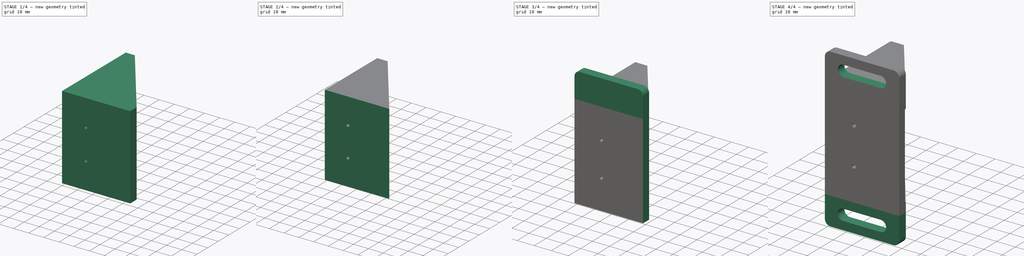
[diagram: build sequence overview — one tinted view per stage of 4, left to right]
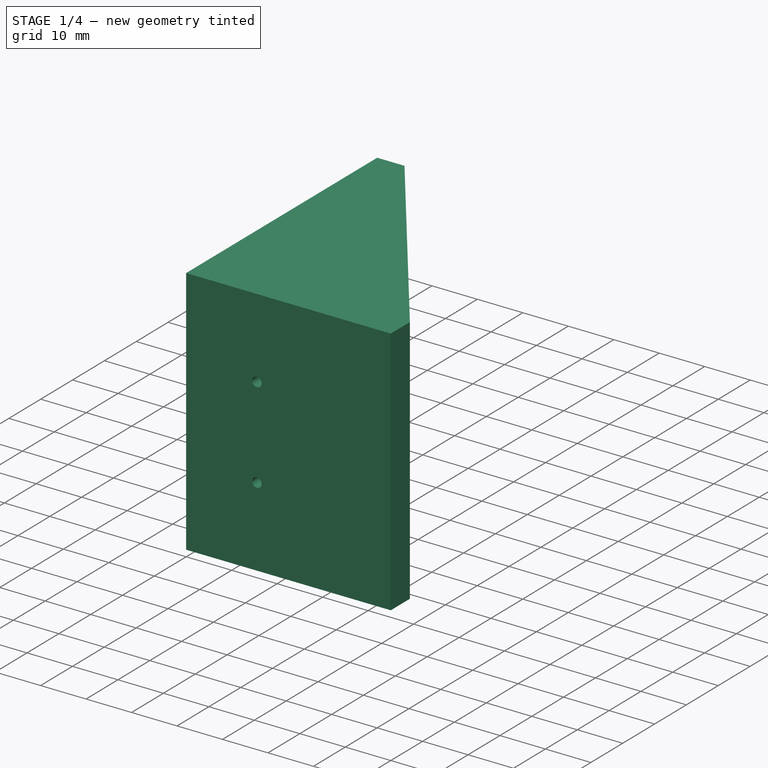
[diagram: stage 1 of 4 — iso view after this stage's code; geometry added in this stage tinted green]
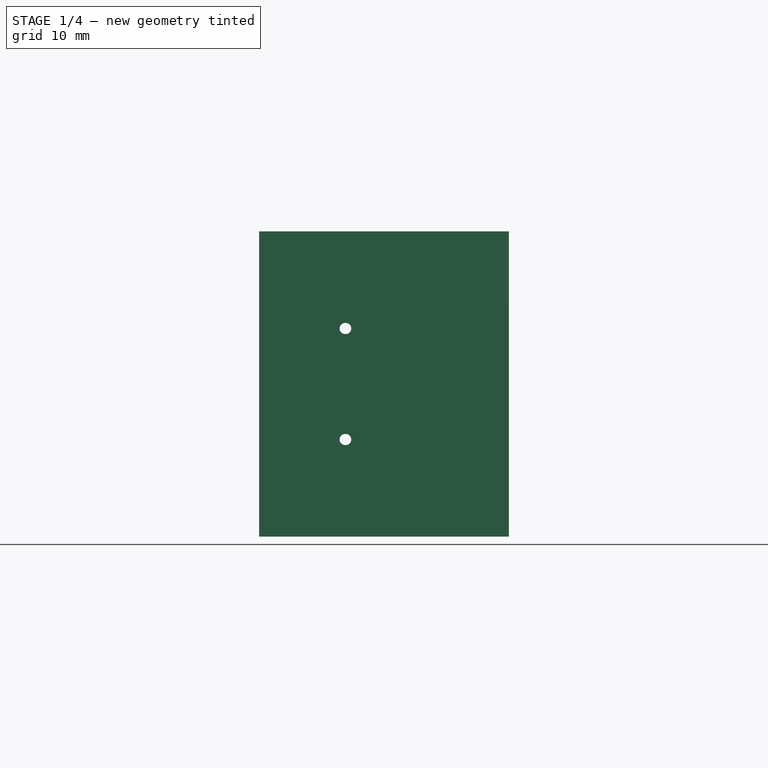
[diagram: stage 1 of 4 — front view after this stage's code; geometry added in this stage tinted green]
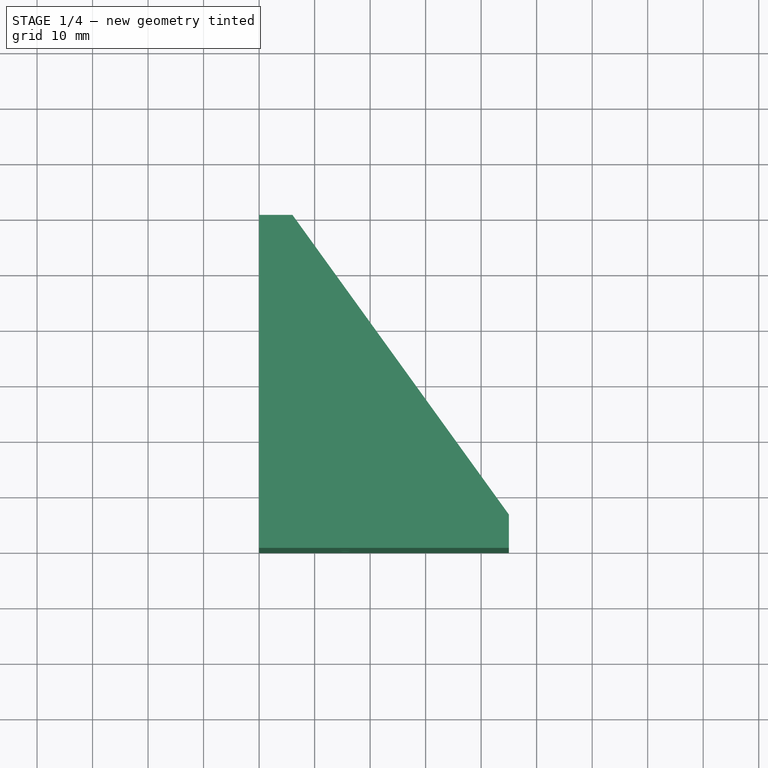
[diagram: stage 1 of 4 — top view after this stage's code; geometry added in this stage tinted green]
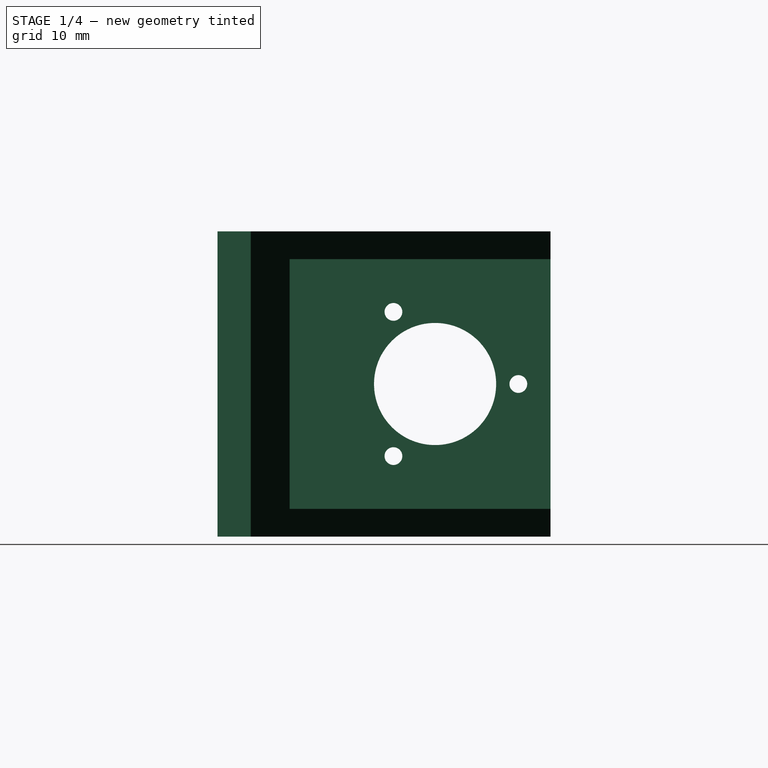
[diagram: stage 1 of 4 — right view after this stage's code; geometry added in this stage tinted green]
FCSTD DOCUMENT  (FreeCAD 0.21R33668 +26 (Git))
Label: encoder_holder3
License: All rights reserved
LicenseURL: https://en.wikipedia.org/wiki/All_rights_reserved
objects: Sketcher::SketchObject×10, PartDesign::Pocket×7, PartDesign::Fillet×4, PartDesign::Pad×3, PartDesign::Body×1
note: 39 computed .brp shape members not serialized (recipe doc carries the construction recipe); baked Part::Feature solids carry a one-line shape summary decoded from their .brp

FEATURE [Sketcher::SketchObject] Sketch
  FullyConstrained = true
  MapMode = 5
  Support = -> [XY_Plane]
  sketch-geometry (5):
    g0: LineSegment StartX=0 StartY=0 StartZ=0 EndX=0 EndY=60 EndZ=0
    g1: LineSegment StartX=0 StartY=60 StartZ=0 EndX=6 EndY=60 EndZ=0
    g2: LineSegment StartX=6 StartY=60 StartZ=0 EndX=45 EndY=6 EndZ=0
    g3: LineSegment StartX=45 StartY=6 StartZ=0 EndX=45 EndY=0 EndZ=0
    g4: LineSegment StartX=45 StartY=0 StartZ=0 EndX=0 EndY=0 EndZ=0
  constraints (14):
    c: Coincident(g-1,g0)
    c: PointOnObject(g0,g-2)
    c: Coincident(g0,g1)
    c: Horizontal(g1)
    c: Coincident(g1,g2)
    c: Coincident(g2,g3)
    c: PointOnObject(g3,g-1)
    c: Vertical(g3)
    c: Coincident(g3,g4)
    c: Coincident(g4,g0)
    c: DistanceX(g1,g1) = 6
    c: DistanceY(g3,g3) = 6
    c: DistanceY(g0,g0) = 60
    c: DistanceX(g4,g4) = 45
FEATURE [PartDesign::Pad] Pad
  Direction = (0,0,1)
  Length = 55
  Length2 = 10
  Profile = -> Sketch
  ReferenceAxis = -> Sketch [N_Axis]
  Type = 0
FEATURE [Sketcher::SketchObject] Sketch001
  ExternalGeometry = -> [Pad]
  FullyConstrained = true
  MapMode = 5
  Placement = pos=(0,60,0) rot=(0,0.707107,0.707107;3.14159rad)
  Support = -> [Pad]
  sketch-geometry (4):
    g0: LineSegment StartX=-6 StartY=50 StartZ=0 EndX=-45 EndY=50 EndZ=0
    g1: LineSegment StartX=-45 StartY=50 StartZ=0 EndX=-45 EndY=5 EndZ=0
    g2: LineSegment StartX=-45 StartY=5 StartZ=0 EndX=-6 EndY=5 EndZ=0
    g3: LineSegment StartX=-6 StartY=5 StartZ=0 EndX=-6 EndY=50 EndZ=0
  constraints (12):
    c: Coincident(g0,g1)
    c: Coincident(g1,g2)
    c: Coincident(g2,g3)
    c: Coincident(g3,g0)
    c: Horizontal(g0)
    c: Horizontal(g2)
    c: Vertical(g1)
    c: Vertical(g3)
    c: PointOnObject(g0,g-3)
    c: DistanceY(g0,g-3) = 5
    c: DistanceY(g-3,g2) = 5
    c: DistanceX(g-4,g0) = 0
FEATURE [PartDesign::Pocket] Pocket
  BaseFeature = -> Pad
  Direction = (0,-1,2e-16)
  Length = 47
  Length2 = 5
  Profile = -> Sketch001
  ReferenceAxis = -> Sketch001 [N_Axis]
  Type = 0
FEATURE [Sketcher::SketchObject] Sketch002
  ExternalGeometry = -> [Pocket]
  FullyConstrained = true
  MapMode = 5
  Placement = pos=(0,0,0) rot=(0.57735,-0.57735,-0.57735;2.0944rad)
  Support = -> [Pocket]
  sketch-geometry (4):
    g0: Circle CenterX=-39.2 CenterY=27.5 CenterZ=0 NormalX=0 NormalY=0 NormalZ=1 AngleXU=0 Radius=11
    g1: Circle CenterX=-54.2 CenterY=27.5 CenterZ=0 NormalX=0 NormalY=0 NormalZ=1 AngleXU=0 Radius=1.6
    g2: Circle CenterX=-31.7 CenterY=40.4904 CenterZ=0 NormalX=0 NormalY=0 NormalZ=1 AngleXU=0 Radius=1.6
    g3: Circle CenterX=-31.7 CenterY=14.5096 CenterZ=0 NormalX=0 NormalY=0 NormalZ=1 AngleXU=0 Radius=1.6
  constraints (12):
    c: Diameter(g0) = 22
    c: DistanceX(g0,g-1) = 39.2
    c: DistanceY(g-1,g0) = 27.5
    c: Diameter(g1) = 3.2
    c: Horizontal(g1,g0)
    c: DistanceX(g1,g0) = 15
    c: Diameter(g2) = 3.2
    c: Diameter(g3) = 3.2
    c: DistanceX(g0,g2) = 7.5
    c: DistanceY(g0,g2) = 12.9904
    c: DistanceX(g0,g3) = 7.5
    c: DistanceY(g3,g0) = 12.9904
FEATURE [PartDesign::Pocket] Pocket001
  BaseFeature = -> Pocket
  Direction = (1,0,0)
  Length = 5
  Length2 = 5
  Profile = -> Sketch002
  ReferenceAxis = -> Sketch002 [N_Axis]
  Type = 1
FEATURE [Sketcher::SketchObject] Sketch003
  ExternalGeometry = -> [Pocket001]
  FullyConstrained = true
  MapMode = 5
  Placement = pos=(0,13,-4.1e-15) rot=(0,0.707107,0.707107;3.14159rad)
  Support = -> [Pocket001]
  sketch-geometry (8):
    g0: ArcOfCircle CenterX=-15.6 CenterY=37.5 CenterZ=0 NormalX=0 NormalY=0 NormalZ=1 AngleXU=0 Radius=1 StartAngle=1.5708 EndAngle=4.71239
    g1: ArcOfCircle CenterX=-15.5 CenterY=37.5 CenterZ=0 NormalX=0 NormalY=0 NormalZ=1 AngleXU=0 Radius=1 StartAngle=4.71239 EndAngle=7.85398
    g2: LineSegment StartX=-15.6 StartY=36.5 StartZ=0 EndX=-15.5 EndY=36.5 EndZ=0
    g3: LineSegment StartX=-15.5 StartY=38.5 StartZ=0 EndX=-15.6 EndY=38.5 EndZ=0
    g4: ArcOfCircle CenterX=-15.6 CenterY=17.5 CenterZ=0 NormalX=0 NormalY=0 NormalZ=1 AngleXU=0 Radius=1 StartAngle=1.5708 EndAngle=4.71239
    g5: ArcOfCircle CenterX=-15.5 CenterY=17.5 CenterZ=0 NormalX=0 NormalY=0 NormalZ=1 AngleXU=0 Radius=1 StartAngle=4.71239 EndAngle=7.85398
    g6: LineSegment StartX=-15.6 StartY=16.5 StartZ=0 EndX=-15.5 EndY=16.5 EndZ=0
    g7: LineSegment StartX=-15.5 StartY=18.5 StartZ=0 EndX=-15.6 EndY=18.5 EndZ=0
  constraints (20):
    c: Tangent(g0,g2) = -1.5708
    c: Tangent(g2,g1) = -1.5708
    c: Tangent(g1,g3) = -1.5708
    c: Tangent(g3,g0) = -1.5708
    c: Equal(g0,g1)
    c: Horizontal(g2)
    c: Tangent(g4,g6) = -1.5708
    c: Tangent(g6,g5) = -1.5708
    c: Tangent(g5,g7) = -1.5708
    c: Tangent(g7,g4) = -1.5708
    c: Equal(g4,g5)
    c: Horizontal(g6)
    c: Radius(g1) = 1
    c: Radius(g5) = 1
    c: Equal(g2,g7)
    c: Vertical(g0,g4)
    c: DistanceY(g4,g0) = 20
    c: DistanceX(g3,g3) = 0.1
    c: DistanceY(g-1,g4) = 17.5
    c: DistanceX(g1,g-3) = 15.5
FEATURE [PartDesign::Pocket] Pocket002
  BaseFeature = -> Pocket001
  Direction = (0,-1,2e-16)
  Length = 5
  Length2 = 5
  Profile = -> Sketch003
  ReferenceAxis = -> Sketch003 [N_Axis]
  Type = 1
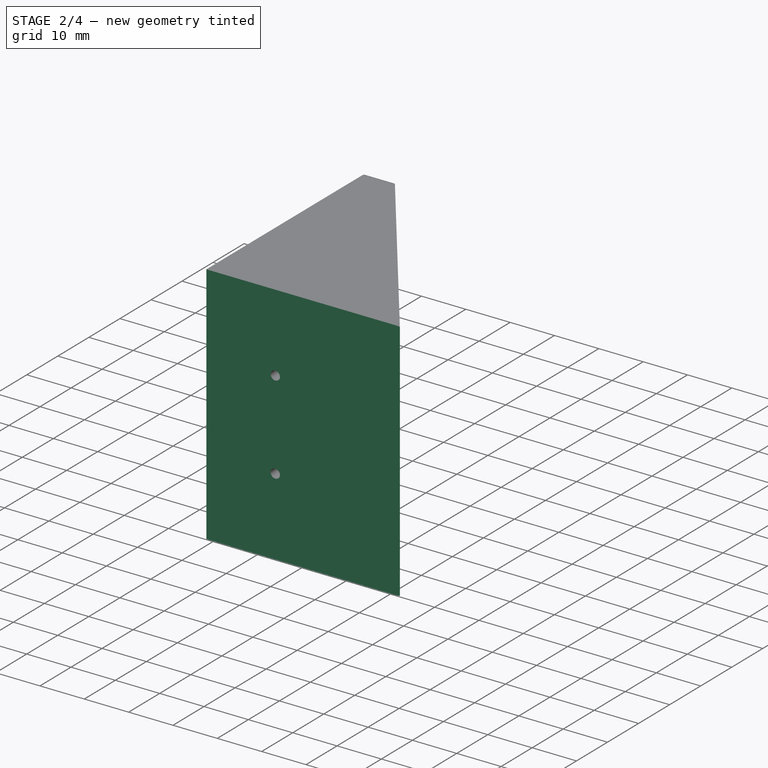
[diagram: stage 2 of 4 — iso view after this stage's code; geometry added in this stage tinted green]
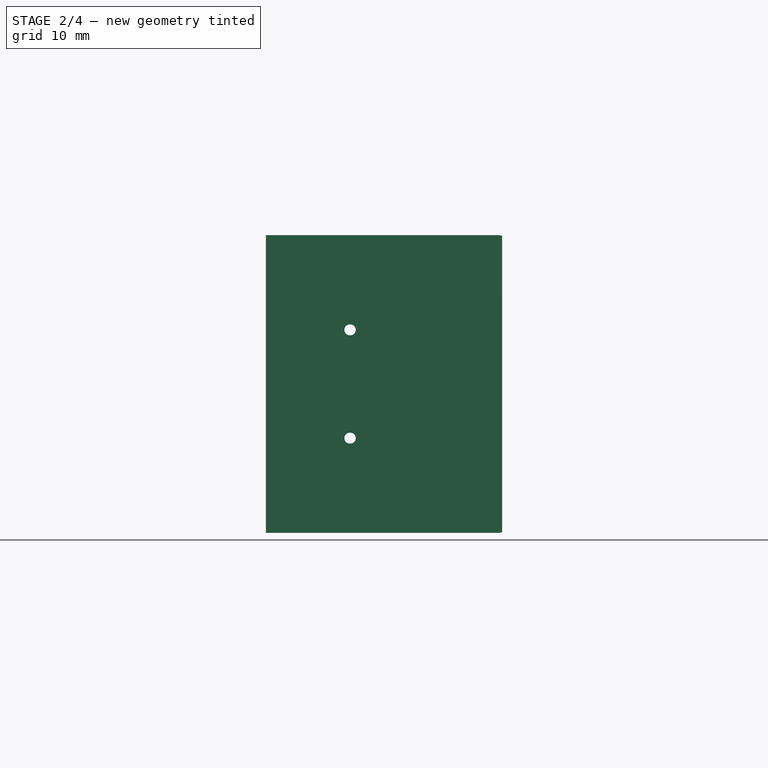
[diagram: stage 2 of 4 — front view after this stage's code; geometry added in this stage tinted green]
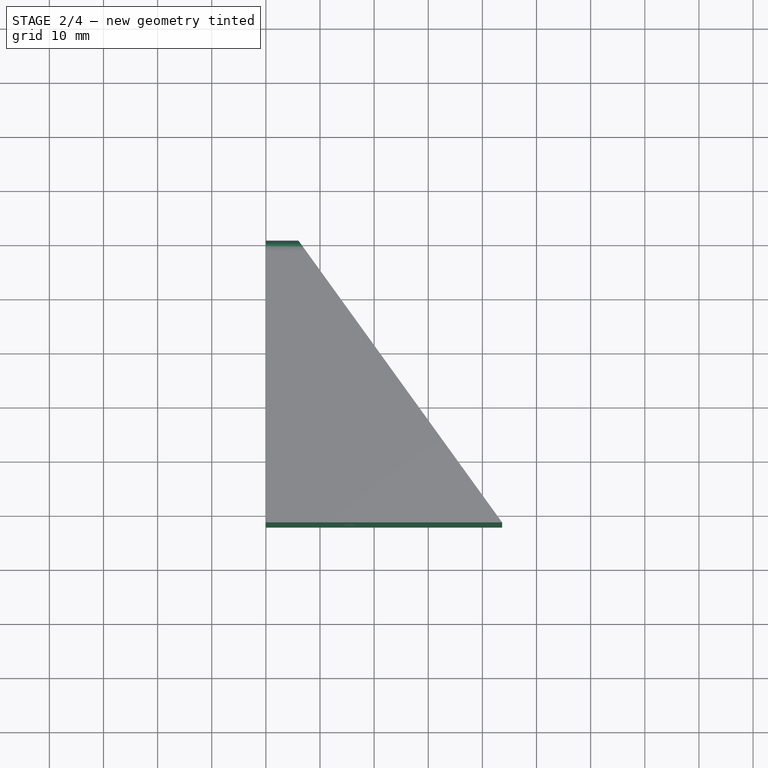
[diagram: stage 2 of 4 — top view after this stage's code; geometry added in this stage tinted green]
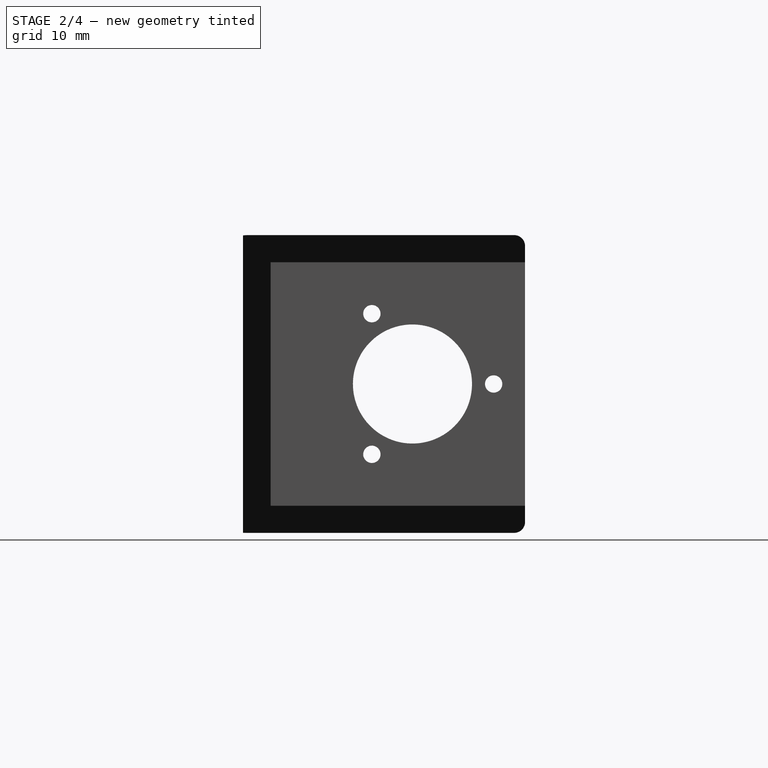
[diagram: stage 2 of 4 — right view after this stage's code; geometry added in this stage tinted green]
FEATURE [PartDesign::Fillet] Fillet
  Base = -> Pocket002 [Edge23,Edge20,Edge22,Edge25]
  BaseFeature = -> Pocket002
  Radius = 2
  SupportTransform = false
  UseAllEdges = false
FEATURE [Sketcher::SketchObject] Sketch004
  FullyConstrained = false
  MapMode = 5
  Placement = pos=(45,0,0) rot=(0.57735,0.57735,0.57735;2.0944rad)
  Support = -> [Fillet]
  sketch-geometry (4):
    g0: LineSegment StartX=0 StartY=0 StartZ=0 EndX=0.885 EndY=0 EndZ=0
    g1: LineSegment StartX=0.885 StartY=0 StartZ=0 EndX=0.885 EndY=58.8523 EndZ=0
    g2: LineSegment StartX=0.885 StartY=58.8523 StartZ=0 EndX=0 EndY=58.8523 EndZ=0
    g3: LineSegment StartX=0 StartY=58.8523 StartZ=0 EndX=0 EndY=0 EndZ=0
  constraints (10):
    c: Coincident(g0,g1)
    c: Coincident(g1,g2)
    c: Coincident(g2,g3)
    c: Coincident(g3,g0)
    c: Horizontal(g0)
    c: Horizontal(g2)
    c: Vertical(g1)
    c: Vertical(g3)
    c: Coincident(g0,g-1)
    c: DistanceX(g2,g2) = 0.885
FEATURE [PartDesign::Pocket] Pocket003
  BaseFeature = -> Fillet
  Direction = (-1,0,0)
  Length = 5
  Length2 = 5
  Profile = -> Sketch004
  ReferenceAxis = -> Sketch004 [N_Axis]
  Type = 1
FEATURE [Sketcher::SketchObject] Sketch005
  ExternalGeometry = -> [Pocket003]
  FullyConstrained = false
  MapMode = 5
  Placement = pos=(45,0,0) rot=(0.57735,0.57735,0.57735;2.0944rad)
  Support = -> [Pocket003]
  sketch-geometry (4):
    g0: LineSegment StartX=0 StartY=0 StartZ=0 EndX=7.885 EndY=0 EndZ=0
    g1: LineSegment StartX=7.885 StartY=0 StartZ=0 EndX=7.885 EndY=57.7922 EndZ=0
    g2: LineSegment StartX=7.885 StartY=57.7922 StartZ=0 EndX=0 EndY=57.7922 EndZ=0
    g3: LineSegment StartX=0 StartY=57.7922 StartZ=0 EndX=0 EndY=0 EndZ=0
  constraints (10):
    c: Coincident(g0,g1)
    c: Coincident(g1,g2)
    c: Coincident(g2,g3)
    c: Coincident(g3,g0)
    c: Horizontal(g0)
    c: Horizontal(g2)
    c: Vertical(g1)
    c: Vertical(g3)
    c: Coincident(g0,g-1)
    c: DistanceX(g-3,g0) = 7
FEATURE [PartDesign::Pocket] Pocket004
  BaseFeature = -> Pocket003
  Direction = (-1,0,0)
  Length = 5
  Length2 = 5
  Profile = -> Sketch005
  ReferenceAxis = -> Sketch005 [N_Axis]
  Type = 1
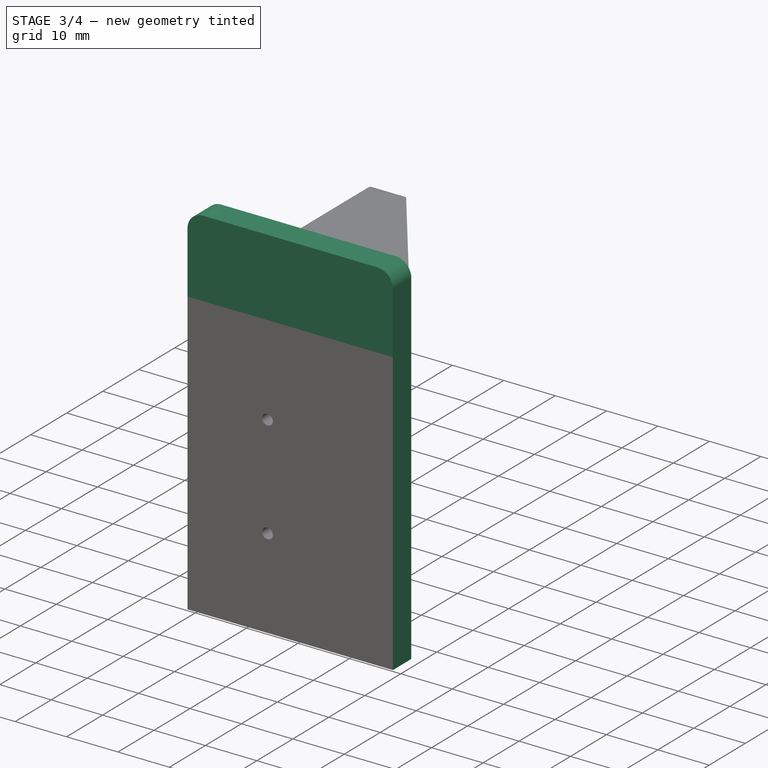
[diagram: stage 3 of 4 — iso view after this stage's code; geometry added in this stage tinted green]
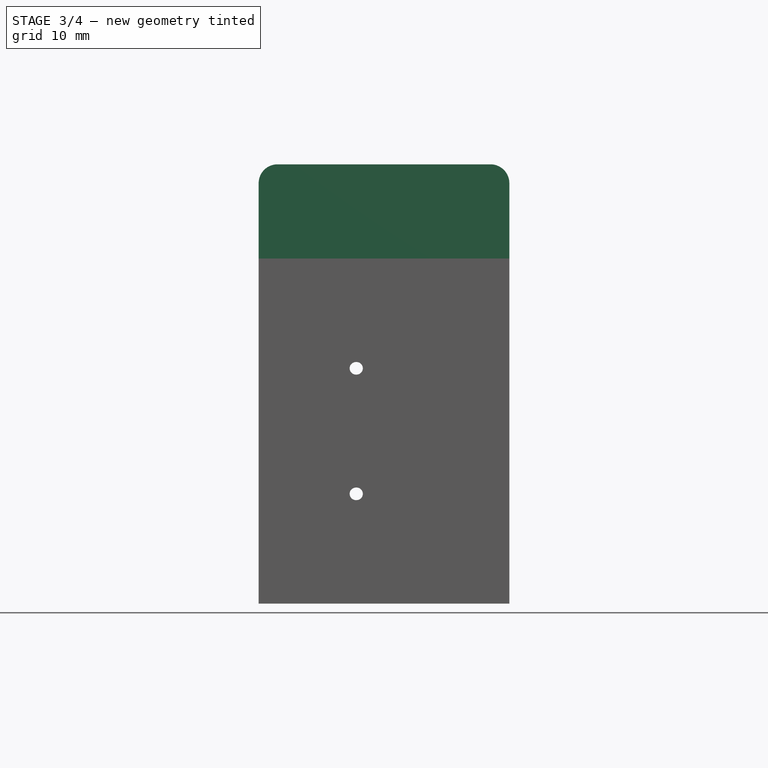
[diagram: stage 3 of 4 — front view after this stage's code; geometry added in this stage tinted green]
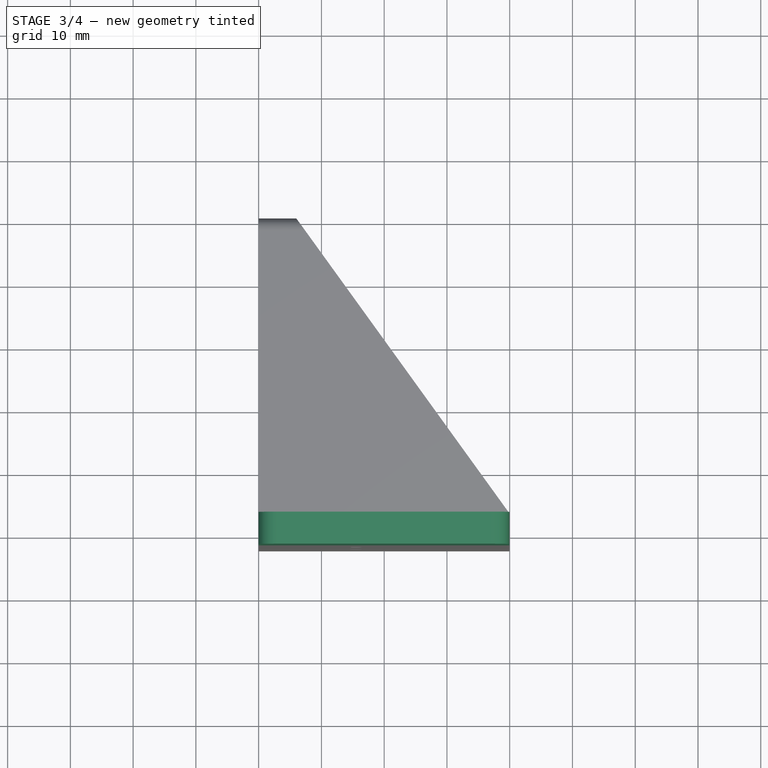
[diagram: stage 3 of 4 — top view after this stage's code; geometry added in this stage tinted green]
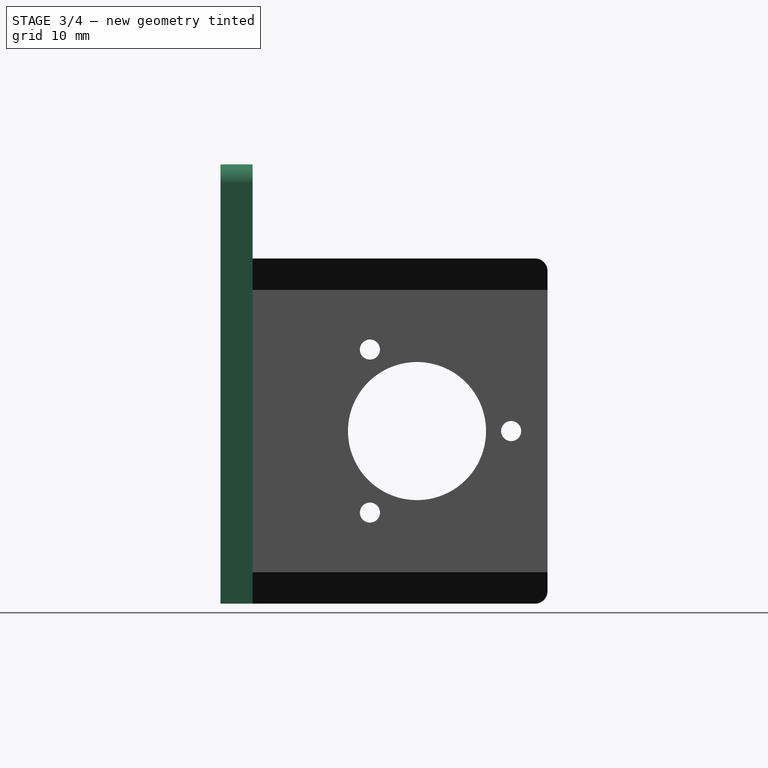
[diagram: stage 3 of 4 — right view after this stage's code; geometry added in this stage tinted green]
FEATURE [Sketcher::SketchObject] Sketch006
  ExternalGeometry = -> [Pocket004]
  FullyConstrained = false
  MapMode = 5
  Placement = pos=(0,60,0) rot=(0,0.707107,0.707107;3.14159rad)
  Support = -> [Pocket004]
  sketch-geometry (4):
    g0: LineSegment StartX=-49.5714 StartY=60.6694 StartZ=0 EndX=-39.9444 EndY=60.6694 EndZ=0
    g1: LineSegment StartX=-39.9444 StartY=60.6694 StartZ=0 EndX=-39.9444 EndY=-7.04187 EndZ=0
    g2: LineSegment StartX=-39.9444 StartY=-7.04187 StartZ=0 EndX=-49.5714 EndY=-7.04187 EndZ=0
    g3: LineSegment StartX=-49.5714 StartY=-7.04187 StartZ=0 EndX=-49.5714 EndY=60.6694 EndZ=0
  constraints (9):
    c: Coincident(g0,g1)
    c: Coincident(g1,g2)
    c: Coincident(g2,g3)
    c: Coincident(g3,g0)
    c: Horizontal(g0)
    c: Horizontal(g2)
    c: Vertical(g1)
    c: Vertical(g3)
    c: DistanceX(g0,g-3) = 0
FEATURE [PartDesign::Pocket] Pocket005
  BaseFeature = -> Pocket004
  Direction = (0,-1,2e-16)
  Length = 5
  Length2 = 5
  Profile = -> Sketch006
  ReferenceAxis = -> Sketch006 [N_Axis]
  Type = 1
FEATURE [Sketcher::SketchObject] Sketch007
  ExternalGeometry = -> [Pocket005]
  FullyConstrained = true
  MapMode = 5
  Placement = pos=(0,0,55) rot=(0,0,1;0rad)
  Support = -> [Pocket005]
  sketch-geometry (4):
    g0: LineSegment StartX=39.9444 StartY=13 StartZ=0 EndX=0 EndY=13 EndZ=0
    g1: LineSegment StartX=0 StartY=13 StartZ=0 EndX=0 EndY=7.885 EndZ=0
    g2: LineSegment StartX=0 StartY=7.885 StartZ=0 EndX=39.9444 EndY=7.885 EndZ=0
    g3: LineSegment StartX=39.9444 StartY=7.885 StartZ=0 EndX=39.9444 EndY=13 EndZ=0
  constraints (11):
    c: Coincident(g0,g1)
    c: Coincident(g1,g2)
    c: Coincident(g2,g3)
    c: Coincident(g3,g0)
    c: Horizontal(g0)
    c: Horizontal(g2)
    c: Vertical(g1)
    c: Vertical(g3)
    c: Coincident(g0,g-4)
    c: DistanceY(g1,g-3) = 0
    c: DistanceX(g1,g-1) = 0
FEATURE [PartDesign::Pad] Pad001
  BaseFeature = -> Pocket005
  Direction = (0,0,1)
  Length = 15
  Length2 = 10
  Profile = -> Sketch007
  ReferenceAxis = -> Sketch007 [N_Axis]
  Type = 0
FEATURE [PartDesign::Fillet] Fillet001
  Base = -> Pad001 [Edge60,Edge26]
  BaseFeature = -> Pad001
  Radius = 3
  SupportTransform = false
  UseAllEdges = false
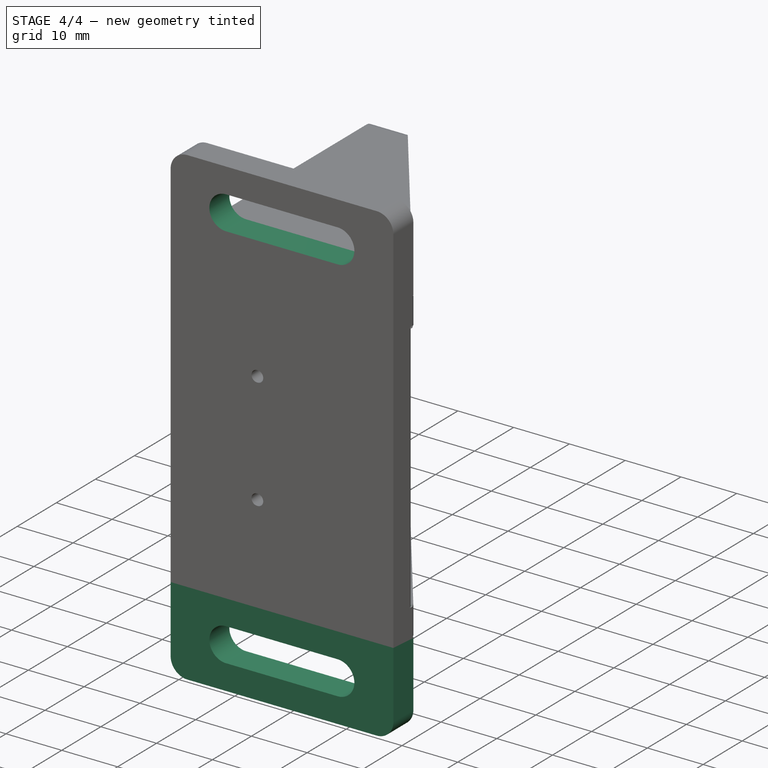
[diagram: stage 4 of 4 — iso view after this stage's code; geometry added in this stage tinted green]
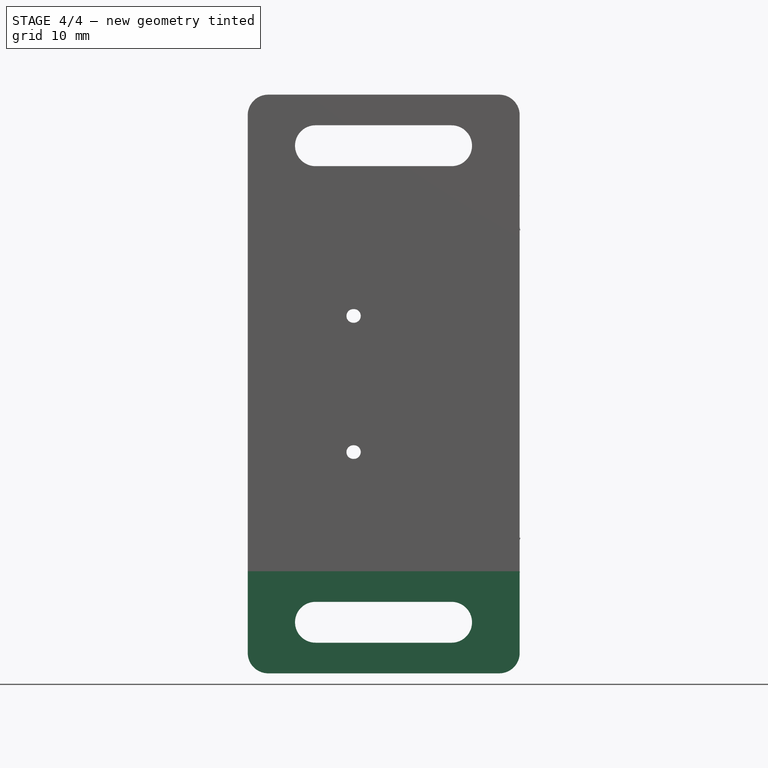
[diagram: stage 4 of 4 — front view after this stage's code; geometry added in this stage tinted green]
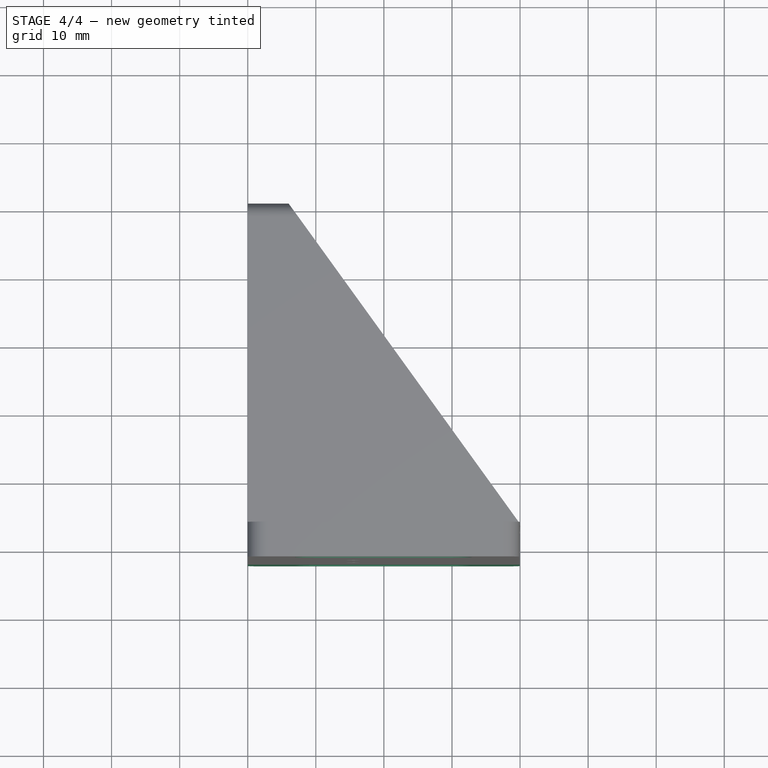
[diagram: stage 4 of 4 — top view after this stage's code; geometry added in this stage tinted green]
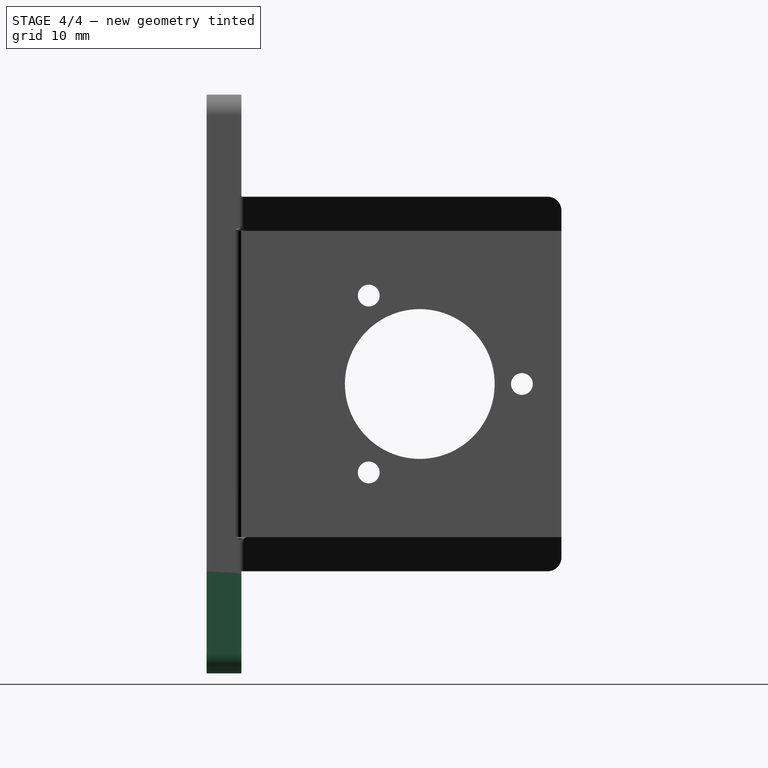
[diagram: stage 4 of 4 — right view after this stage's code; geometry added in this stage tinted green]
FEATURE [Sketcher::SketchObject] Sketch008
  ExternalGeometry = -> [Fillet001]
  FullyConstrained = true
  MapMode = 5
  Placement = pos=(0,0,0) rot=(1,0,0;3.14159rad)
  Support = -> [Fillet001]
  sketch-geometry (4):
    g0: LineSegment StartX=39.9444 StartY=-13 StartZ=0 EndX=0 EndY=-13 EndZ=0
    g1: LineSegment StartX=0 StartY=-13 StartZ=0 EndX=0 EndY=-7.885 EndZ=0
    g2: LineSegment StartX=0 StartY=-7.885 StartZ=0 EndX=39.9444 EndY=-7.885 EndZ=0
    g3: LineSegment StartX=39.9444 StartY=-7.885 StartZ=0 EndX=39.9444 EndY=-13 EndZ=0
  constraints (11):
    c: Coincident(g0,g1)
    c: Coincident(g1,g2)
    c: Coincident(g2,g3)
    c: Coincident(g3,g0)
    c: Horizontal(g0)
    c: Horizontal(g2)
    c: Vertical(g1)
    c: Vertical(g3)
    c: Coincident(g0,g-3)
    c: DistanceX(g1,g-4) = 0
    c: DistanceY(g-4,g2) = 0
FEATURE [PartDesign::Pad] Pad002
  BaseFeature = -> Fillet001
  Direction = (0,0,-1)
  Length = 15
  Length2 = 10
  Profile = -> Sketch008
  ReferenceAxis = -> Sketch008 [N_Axis]
  Type = 0
FEATURE [PartDesign::Fillet] Fillet002
  Base = -> Pad002 [Edge72,Edge34]
  BaseFeature = -> Pad002
  Radius = 3
  SupportTransform = false
  UseAllEdges = false
FEATURE [Sketcher::SketchObject] Sketch009
  ExternalGeometry = -> [Fillet002]
  FullyConstrained = true
  MapMode = 5
  Placement = pos=(0,13,0) rot=(0,0.707107,0.707107;3.14159rad)
  Support = -> [Fillet002]
  sketch-geometry (8):
    g0: ArcOfCircle CenterX=-29.9444 CenterY=62.5 CenterZ=0 NormalX=0 NormalY=0 NormalZ=1 AngleXU=0 Radius=3 StartAngle=1.5708 EndAngle=4.71239
    g1: ArcOfCircle CenterX=-9.94444 CenterY=62.5 CenterZ=0 NormalX=0 NormalY=0 NormalZ=1 AngleXU=0 Radius=3 StartAngle=4.71239 EndAngle=7.85398
    g2: LineSegment StartX=-29.9444 StartY=59.5 StartZ=0 EndX=-9.94444 EndY=59.5 EndZ=0
    g3: LineSegment StartX=-9.94444 StartY=65.5 StartZ=0 EndX=-29.9444 EndY=65.5 EndZ=0
    g4: ArcOfCircle CenterX=-29.9444 CenterY=-7.5 CenterZ=0 NormalX=0 NormalY=0 NormalZ=1 AngleXU=0 Radius=3 StartAngle=1.5708 EndAngle=4.71239
    g5: ArcOfCircle CenterX=-9.94444 CenterY=-7.5 CenterZ=0 NormalX=0 NormalY=0 NormalZ=1 AngleXU=0 Radius=3 StartAngle=4.71239 EndAngle=7.85398
    g6: LineSegment StartX=-29.9444 StartY=-10.5 StartZ=0 EndX=-9.94444 EndY=-10.5 EndZ=0
    g7: LineSegment StartX=-9.94444 StartY=-4.5 StartZ=0 EndX=-29.9444 EndY=-4.5 EndZ=0
  constraints (20):
    c: Tangent(g0,g2) = -1.5708
    c: Tangent(g2,g1) = -1.5708
    c: Tangent(g1,g3) = -1.5708
    c: Tangent(g3,g0) = -1.5708
    c: Equal(g0,g1)
    c: Horizontal(g2)
    c: Tangent(g4,g6) = -1.5708
    c: Tangent(g6,g5) = -1.5708
    c: Tangent(g5,g7) = -1.5708
    c: Tangent(g7,g4) = -1.5708
    c: Equal(g4,g5)
    c: Horizontal(g6)
    c: Radius(g1) = 3
    c: Equal(g5,g1)
    c: Vertical(g1,g5)
    c: DistanceX(g3,g3) = 20
    c: DistanceX(g-3,g0) = 7
    c: DistanceY(g-4,g0) = 7.5
    c: DistanceY(g-10,g4) = 7.5
    c: DistanceX(g-10,g4) = 7
FEATURE [PartDesign::Pocket] Pocket006
  BaseFeature = -> Fillet002
  Direction = (0,-1,2e-16)
  Length = 5
  Length2 = 5
  Profile = -> Sketch009
  ReferenceAxis = -> Sketch009 [N_Axis]
  Type = 1
FEATURE [PartDesign::Fillet] Fillet003
  Base = -> Pocket006 [Edge75,Edge77,Edge78]
  BaseFeature = -> Pocket006
  Radius = 1
  SupportTransform = false
  UseAllEdges = false
FEATURE [PartDesign::Body] Body
  Group = -> [Sketch,Pad,Sketch001,Pocket,Sketch002,Pocket001,Sketch003,Pocket002,Fillet,Sketch004,Pocket003,Sketch005,Pocket004,Sketch006,Pocket005,Sketch007,Pad001,Fillet001,Sketch008,Pad002,Fillet002,Sketch009,Pocket006,Fillet003]
  Origin = -> Origin
  Tip = -> Fillet003
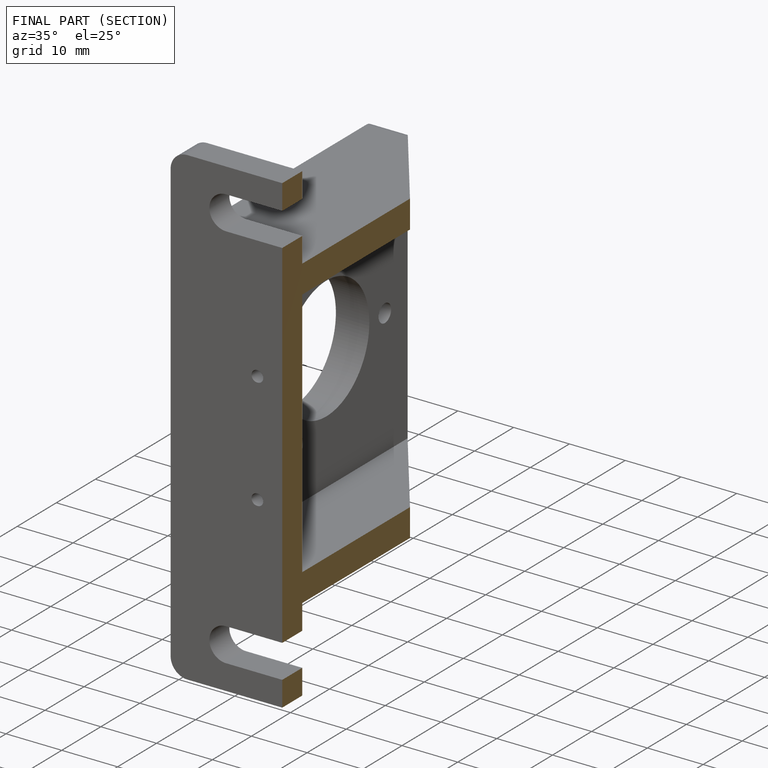
[diagram: finished part — half-section view (interior)]
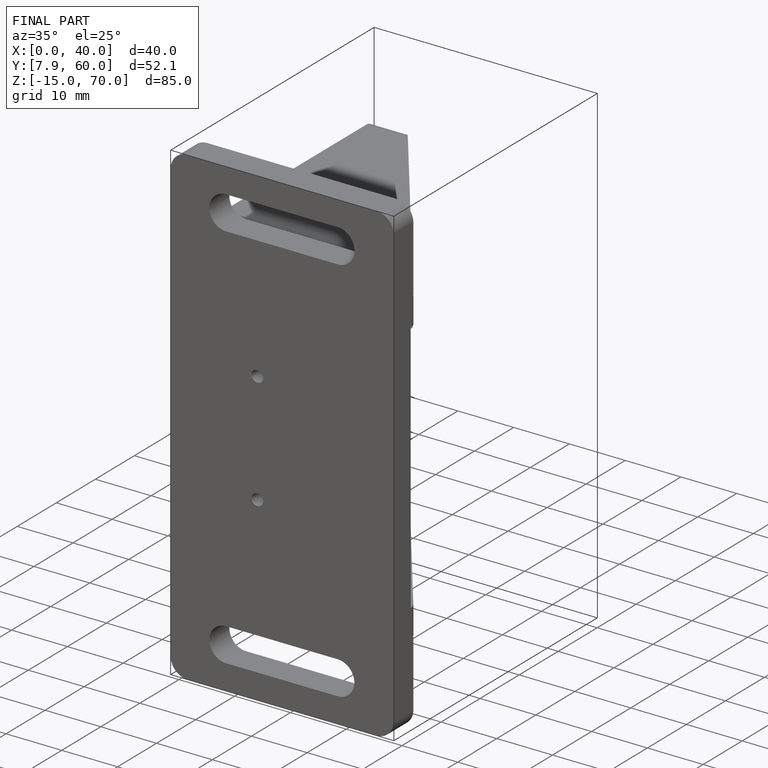
[diagram: finished part — iso view with bounding-box wireframe]
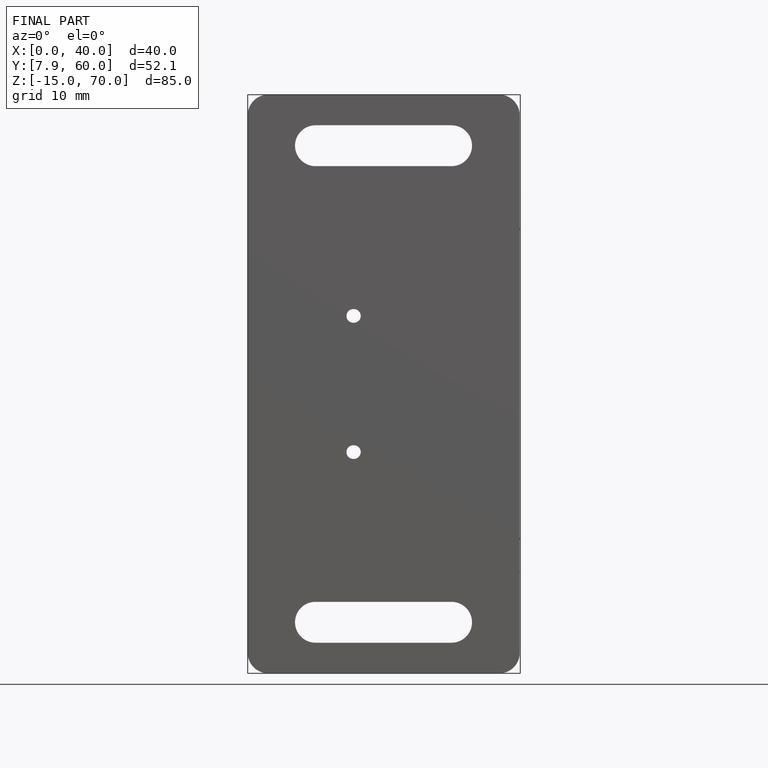
[diagram: finished part — front view with bounding-box wireframe]
